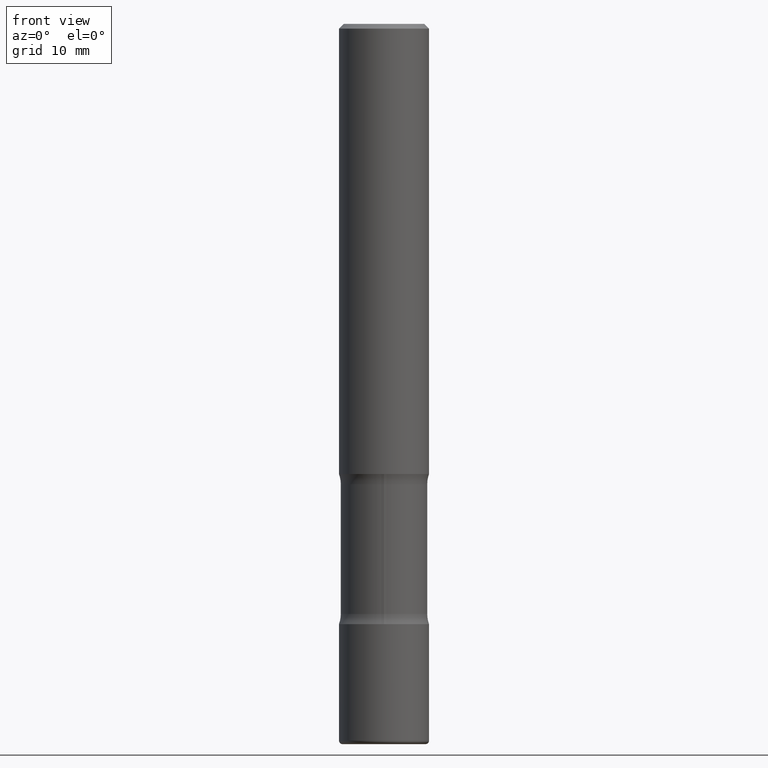
[diagram: clean part render]
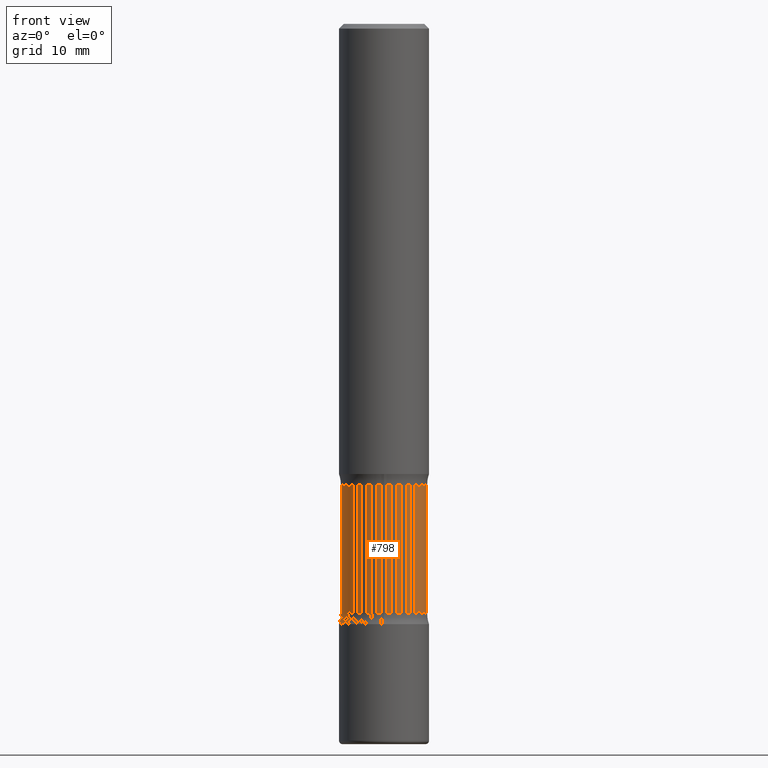
[diagram: same view with one face highlighted and labeled with its STEP entity id]
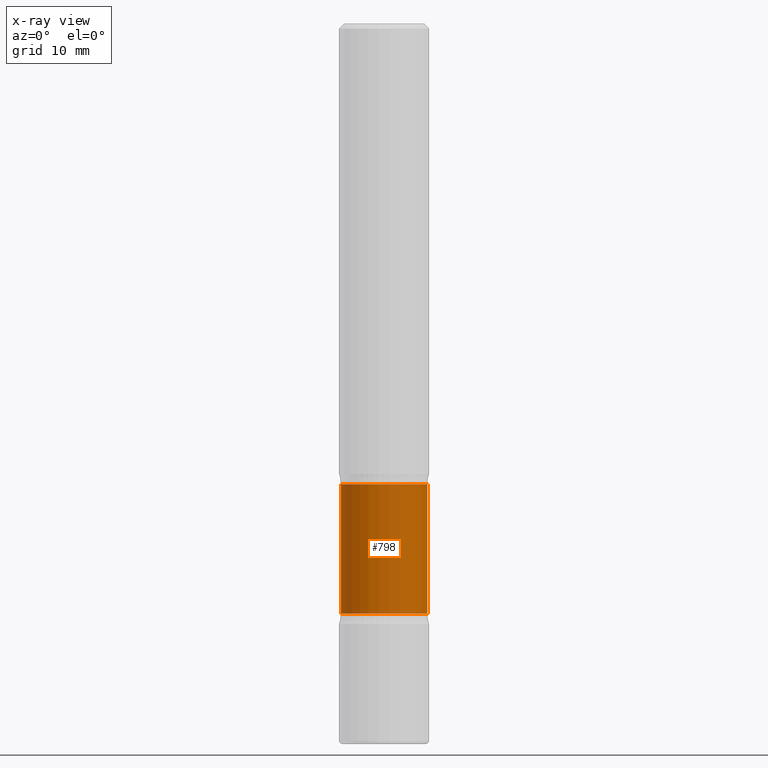
[diagram: x-ray of the same camera — body ghosted, the highlighted face saturated]
A machine part, front view. The second image highlights one B-rep face of the part: STEP entity #798.
The next image is the same camera in x-ray: the body ghosted, the highlighted face saturated — about 0% of this face is hidden behind the body in this view.
In plain terms, the highlighted cylindrical surface (partial cylindrical patch) has radius 4.572 mm, axis along (-0, 0, 1).
Its self-contained STEP definition (entity closure, byte-faithful):
#10 = DIRECTION ( 'NONE',  ( -2.445468806185136597E-29, 3.491481338843145583E-15, 1.000000000000000000 ) ) ;
#14 = CARTESIAN_POINT ( 'NONE',  ( -0.1800000000000000488, -7.348630807762562010E-15, -2.457353194726920265 ) ) ;
#37 = CARTESIAN_POINT ( 'NONE',  ( 0.1800000000000000211, -7.803460792314427030E-15, -1.875000000000000000 ) ) ;
#61 = CIRCLE ( 'NONE', #752, 0.1799999999999999933 ) ;
#69 = EDGE_CURVE ( 'NONE', #680, #134, #781, .T. ) ;
#84 = CARTESIAN_POINT ( 'NONE',  ( 6.009380583484073203E-29, -8.579802822335626818E-15, -2.457353194726920265 ) ) ;
#134 = VERTEX_POINT ( 'NONE', #354 ) ;
#149 = DIRECTION ( 'NONE',  ( -2.445468806185136597E-29, 3.491481338843145583E-15, 1.000000000000000000 ) ) ;
#232 = CARTESIAN_POINT ( 'NONE',  ( -0.1800000000000000211, -5.267550585962718025E-15, -1.875000000000000000 ) ) ;
#248 = EDGE_CURVE ( 'NONE', #134, #686, #61, .T. ) ;
#260 = ORIENTED_EDGE ( 'NONE', *, *, #263, .T. ) ;
#263 = EDGE_CURVE ( 'NONE', #680, #474, #776, .T. ) ;
#286 = DIRECTION ( 'NONE',  ( -2.445468806185136877E-29, 3.491481338843145188E-15, 1.000000000000000000 ) ) ;
#293 = VECTOR ( 'NONE', #363, 39.37007874015748143 ) ;
#313 = CYLINDRICAL_SURFACE ( 'NONE', #467, 0.1800000000000000211 ) ;
#349 = ORIENTED_EDGE ( 'NONE', *, *, #248, .F. ) ;
#354 = CARTESIAN_POINT ( 'NONE',  ( -0.1799999999999999933, -5.315355495757832321E-15, -1.917646805273080179 ) ) ;
#363 = DIRECTION ( 'NONE',  ( -2.445468806185136877E-29, 3.491481338843145188E-15, 1.000000000000000000 ) ) ;
#379 = ORIENTED_EDGE ( 'NONE', *, *, #69, .F. ) ;
#387 = FACE_OUTER_BOUND ( 'NONE', #725, .T. ) ;
#399 = AXIS2_PLACEMENT_3D ( 'NONE', #84, #583, #645 ) ;
#407 = CARTESIAN_POINT ( 'NONE',  ( 0.1800000000000000488, -9.836736104319155141E-15, -2.457353194726920265 ) ) ;
#440 = CARTESIAN_POINT ( 'NONE',  ( 4.585254011597131119E-29, -6.546527510330898707E-15, -1.875000000000000000 ) ) ;
#467 = AXIS2_PLACEMENT_3D ( 'NONE', #440, #10, #693 ) ;
#474 = VERTEX_POINT ( 'NONE', #407 ) ;
#476 = EDGE_CURVE ( 'NONE', #474, #686, #593, .T. ) ;
#569 = CARTESIAN_POINT ( 'NONE',  ( 0.1799999999999999933, -7.952361317086663578E-15, -1.917646805273080179 ) ) ;
#570 = DIRECTION ( 'NONE',  ( 1.000000000000000000, -6.982962677686269077E-15, 0.000000000000000000 ) ) ;
#583 = DIRECTION ( 'NONE',  ( -2.445468806185136597E-29, 3.491481338843145583E-15, 1.000000000000000000 ) ) ;
#593 = LINE ( 'NONE', #37, #777 ) ;
#645 = DIRECTION ( 'NONE',  ( 1.000000000000000000, -6.982962677686266711E-15, 0.000000000000000000 ) ) ;
#648 = CARTESIAN_POINT ( 'NONE',  ( 4.689545443575900529E-29, -6.695428035103134465E-15, -1.917646805273080179 ) ) ;
#680 = VERTEX_POINT ( 'NONE', #14 ) ;
#686 = VERTEX_POINT ( 'NONE', #569 ) ;
#693 = DIRECTION ( 'NONE',  ( 1.000000000000000000, -6.982962677686267499E-15, 0.000000000000000000 ) ) ;
#725 = EDGE_LOOP ( 'NONE', ( #379, #260, #771, #349 ) ) ;
#752 = AXIS2_PLACEMENT_3D ( 'NONE', #648, #149, #570 ) ;
#771 = ORIENTED_EDGE ( 'NONE', *, *, #476, .T. ) ;
#776 = CIRCLE ( 'NONE', #399, 0.1800000000000000488 ) ;
#777 = VECTOR ( 'NONE', #286, 39.37007874015748143 ) ;
#781 = LINE ( 'NONE', #232, #293 ) ;
#798 = ADVANCED_FACE ( 'NONE', ( #387 ), #313, .T. ) ;